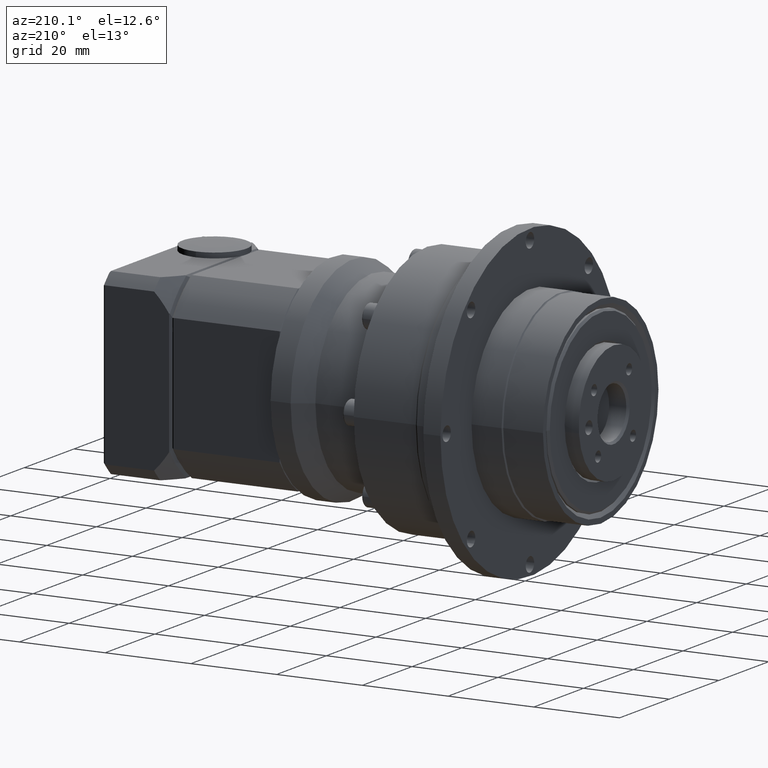
[diagram: clean part render]
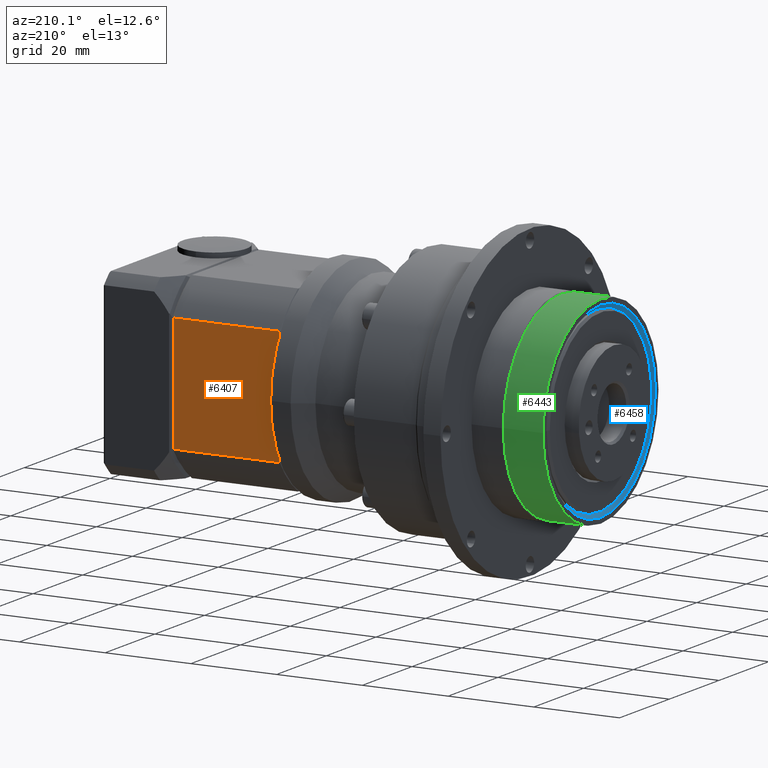
[diagram: same view with three faces highlighted in distinct colors, each labeled with its STEP entity id]
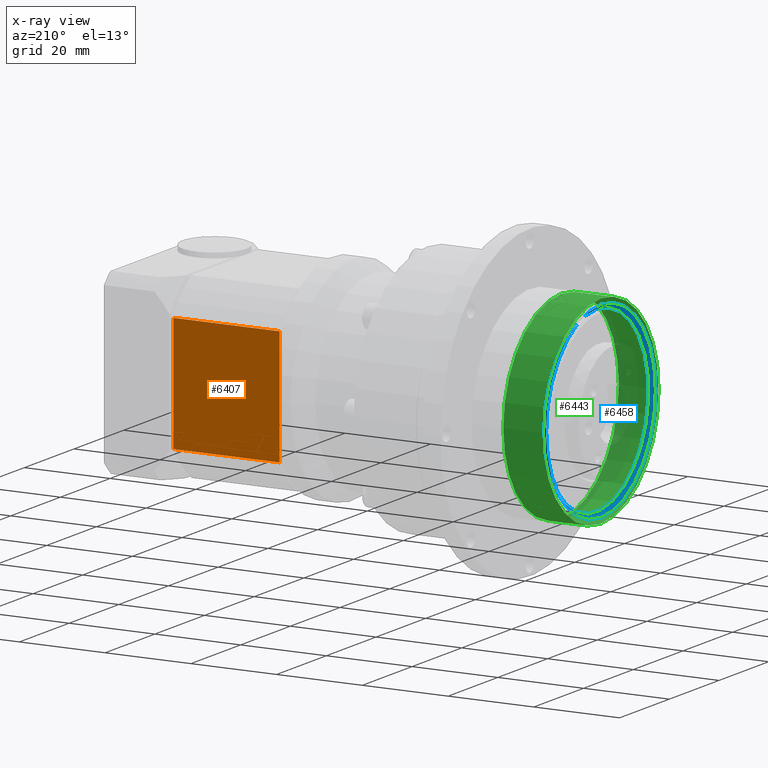
[diagram: x-ray of the same camera — body ghosted, the three highlighted faces saturated]
A machine part, auxiliary view with three faces highlighted in distinct colors.
The next image is the same camera in x-ray (body ghosted, the three faces saturated) — at least one of them is partly hidden behind the body in this view.
Their STEP definitions:

[orange] entity #6407 — the highlighted planar face has unit normal (-0, 1, 0).
#277=LINE('',#10394,#555);
#278=LINE('',#10399,#556);
#280=LINE('',#10405,#558);
#281=LINE('',#10406,#559);
#555=VECTOR('',#8330,27.1293199325011);
#556=VECTOR('',#8337,24.8);
#558=VECTOR('',#8343,24.8);
#559=VECTOR('',#8344,27.1293199325011);
#1755=FACE_OUTER_BOUND('',#2310,.T.);
#2310=EDGE_LOOP('',(#5108,#5109,#5110,#5111));
#3345=VERTEX_POINT('',#10381);
#3346=VERTEX_POINT('',#10389);
#3347=VERTEX_POINT('',#10398);
#3349=VERTEX_POINT('',#10404);
#4014=EDGE_CURVE('',#3346,#3345,#277,.T.);
#4016=EDGE_CURVE('',#3347,#3345,#278,.T.);
#4019=EDGE_CURVE('',#3346,#3349,#280,.T.);
#4020=EDGE_CURVE('',#3347,#3349,#281,.T.);
#5108=ORIENTED_EDGE('',*,*,#4014,.F.);
#5109=ORIENTED_EDGE('',*,*,#4019,.T.);
#5110=ORIENTED_EDGE('',*,*,#4020,.F.);
#5111=ORIENTED_EDGE('',*,*,#4016,.T.);
#6099=PLANE('',#7048);
#6407=ADVANCED_FACE('',(#1755),#6099,.T.);
#7048=AXIS2_PLACEMENT_3D('',#10403,#8341,#8342);
#8330=DIRECTION('',(-2.25267977437556E-15,-9.34251849163001E-16,1.));
#8337=DIRECTION('',(1.,1.00613961606657E-15,2.25267977437556E-15));
#8341=DIRECTION('center_axis',(-1.00613961606657E-15,1.,9.34251849162999E-16));
#8342=DIRECTION('ref_axis',(2.1316282072803E-15,1.06581410364015E-15,-1.));
#8343=DIRECTION('',(-1.,-1.00613961606657E-15,-2.25267977437556E-15));
#8344=DIRECTION('',(2.25267977437556E-15,9.34251849163001E-16,-1.));
#10381=CARTESIAN_POINT('',(47.3264486176498,25.4051270884583,-47.8205348759249));
#10389=CARTESIAN_POINT('',(47.3264486176499,25.4051270884583,-74.949854808426));
#10394=CARTESIAN_POINT('',(47.3264486176499,25.4051270884583,-50.8851948421754));
#10398=CARTESIAN_POINT('',(22.5264486176498,25.4051270884582,-47.8205348759249));
#10399=CARTESIAN_POINT('',(47.8264486176498,25.4051270884583,-47.8205348759249));
#10403=CARTESIAN_POINT('Origin',(47.8264486176498,25.4051270884583,-40.3851948421754));
#10404=CARTESIAN_POINT('',(22.5264486176499,25.4051270884583,-74.949854808426));
#10405=CARTESIAN_POINT('',(47.8264486176499,25.4051270884583,-74.949854808426));
#10406=CARTESIAN_POINT('',(22.5264486176498,25.4051270884582,-50.8851948421755));

[blue] entity #6458 — the highlighted conical surface has half-angle 45 deg.
#1122=CONICAL_SURFACE('',#7150,21.5,45.);
#1446=FACE_BOUND('',#2414,.T.);
#1806=FACE_OUTER_BOUND('',#2413,.T.);
#2413=EDGE_LOOP('',(#5261));
#2414=EDGE_LOOP('',(#5262));
#2944=CIRCLE('',#7149,22.);
#2945=CIRCLE('',#7151,21.);
#3406=VERTEX_POINT('',#10607);
#3407=VERTEX_POINT('',#10610);
#4091=EDGE_CURVE('',#3406,#3406,#2944,.T.);
#4092=EDGE_CURVE('',#3407,#3407,#2945,.T.);
#5261=ORIENTED_EDGE('',*,*,#4092,.T.);
#5262=ORIENTED_EDGE('',*,*,#4091,.T.);
#6458=ADVANCED_FACE('',(#1806,#1446),#1122,.F.);
#7149=AXIS2_PLACEMENT_3D('',#10608,#8557,#8558);
#7150=AXIS2_PLACEMENT_3D('',#10609,#8559,#8560);
#7151=AXIS2_PLACEMENT_3D('',#10611,#8561,#8562);
#8557=DIRECTION('center_axis',(-1.,2.06779038336434E-15,-1.83973716379629E-15));
#8558=DIRECTION('ref_axis',(1.83973716379629E-15,5.03803729503249E-16,-1.));
#8559=DIRECTION('center_axis',(-1.,2.06779038336434E-15,-1.83973716379629E-15));
#8560=DIRECTION('ref_axis',(1.83973716379629E-15,5.03803729503249E-16,-1.));
#8561=DIRECTION('center_axis',(1.,-2.06779038336434E-15,1.83973716379629E-15));
#8562=DIRECTION('ref_axis',(1.83973716379629E-15,5.03803729503249E-16,-1.));
#10607=CARTESIAN_POINT('',(-40.1735513823496,4.40512708845816,-39.3851948421757));
#10608=CARTESIAN_POINT('Origin',(-40.1735513823496,4.40512708845817,-61.3851948421757));
#10609=CARTESIAN_POINT('Origin',(-39.6735513823496,4.40512708845817,-61.3851948421757));
#10610=CARTESIAN_POINT('',(-39.1735513823496,4.40512708845815,-40.3851948421757));
#10611=CARTESIAN_POINT('Origin',(-39.1735513823496,4.40512708845816,-61.3851948421757));

[green] entity #6443 — the highlighted cylindrical surface (bore or boss wall) has radius 23.25 mm, axis along (1, -0, 0).
#1231=CYLINDRICAL_SURFACE('',#7120,23.25);
#1423=FACE_BOUND('',#2376,.T.);
#1791=FACE_OUTER_BOUND('',#2375,.T.);
#2375=EDGE_LOOP('',(#5223));
#2376=EDGE_LOOP('',(#5224));
#2929=CIRCLE('',#7119,23.25);
#2930=CIRCLE('',#7121,23.25);
#3391=VERTEX_POINT('',#10562);
#3392=VERTEX_POINT('',#10565);
#4076=EDGE_CURVE('',#3391,#3391,#2929,.T.);
#4077=EDGE_CURVE('',#3392,#3392,#2930,.T.);
#5223=ORIENTED_EDGE('',*,*,#4076,.F.);
#5224=ORIENTED_EDGE('',*,*,#4077,.T.);
#6443=ADVANCED_FACE('',(#1791,#1423),#1231,.T.);
#7119=AXIS2_PLACEMENT_3D('',#10563,#8497,#8498);
#7120=AXIS2_PLACEMENT_3D('',#10564,#8499,#8500);
#7121=AXIS2_PLACEMENT_3D('',#10566,#8501,#8502);
#8497=DIRECTION('center_axis',(1.,-2.06779038336434E-15,1.83973716379629E-15));
#8498=DIRECTION('ref_axis',(1.83973716379629E-15,5.03803729503249E-16,-1.));
#8499=DIRECTION('center_axis',(1.,-2.06779038336434E-15,1.83973716379629E-15));
#8500=DIRECTION('ref_axis',(2.06779038336434E-15,1.,5.03803729503253E-16));
#8501=DIRECTION('center_axis',(1.,-2.06779038336434E-15,1.83973716379629E-15));
#8502=DIRECTION('ref_axis',(1.83973716379629E-15,5.03803729503249E-16,-1.));
#10562=CARTESIAN_POINT('',(-30.9235513823495,27.6551270884581,-61.3851948421757));
#10563=CARTESIAN_POINT('Origin',(-30.9235513823496,4.40512708845815,-61.3851948421757));
#10564=CARTESIAN_POINT('Origin',(-35.5485513823496,4.40512708845816,-61.3851948421757));
#10565=CARTESIAN_POINT('',(-40.1735513823495,27.6551270884582,-61.3851948421757));
#10566=CARTESIAN_POINT('Origin',(-40.1735513823496,4.40512708845817,-61.3851948421757));